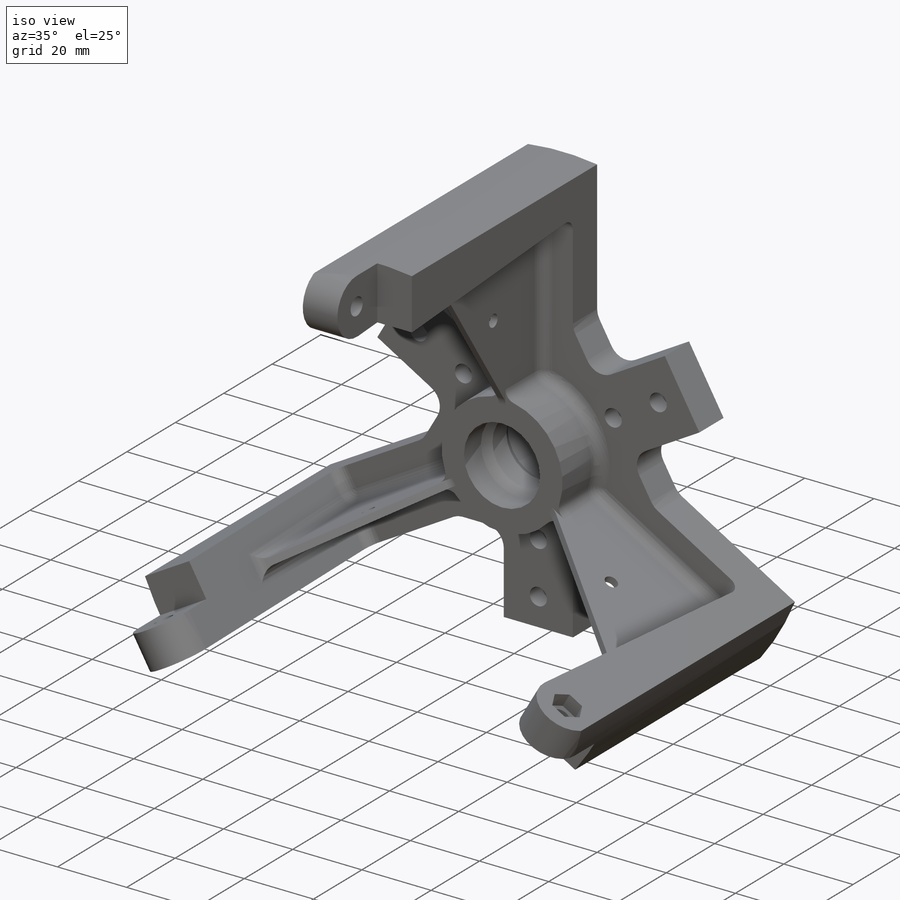
[diagram: iso view]
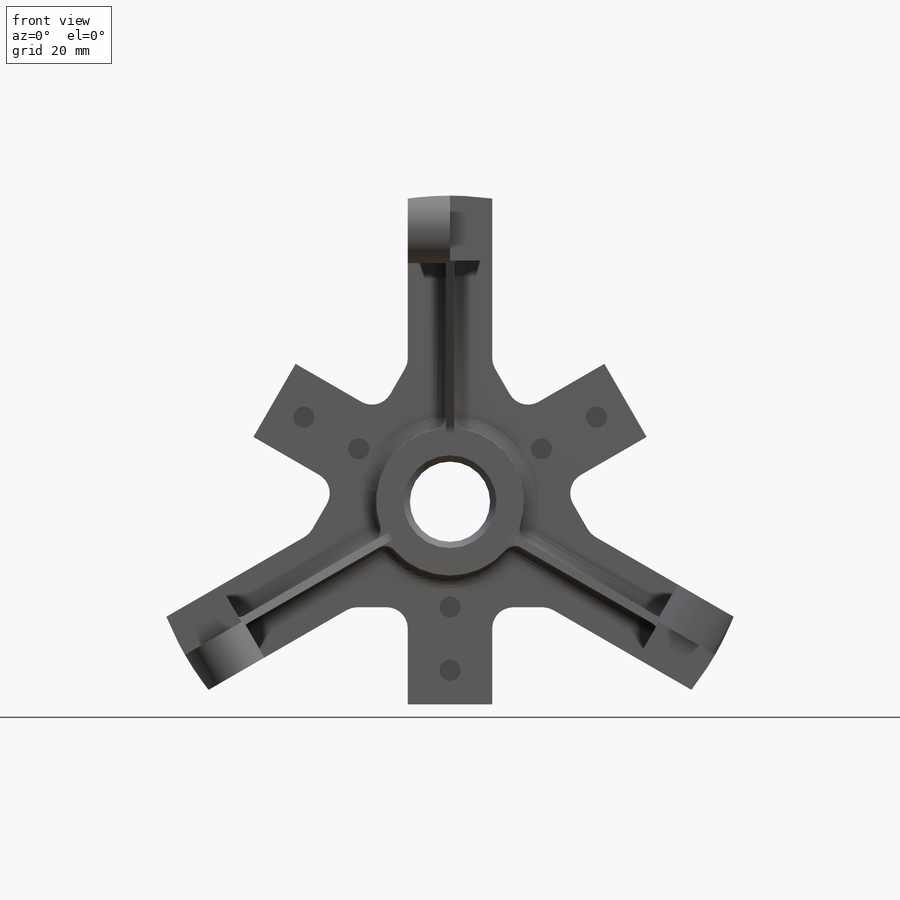
[diagram: front view]
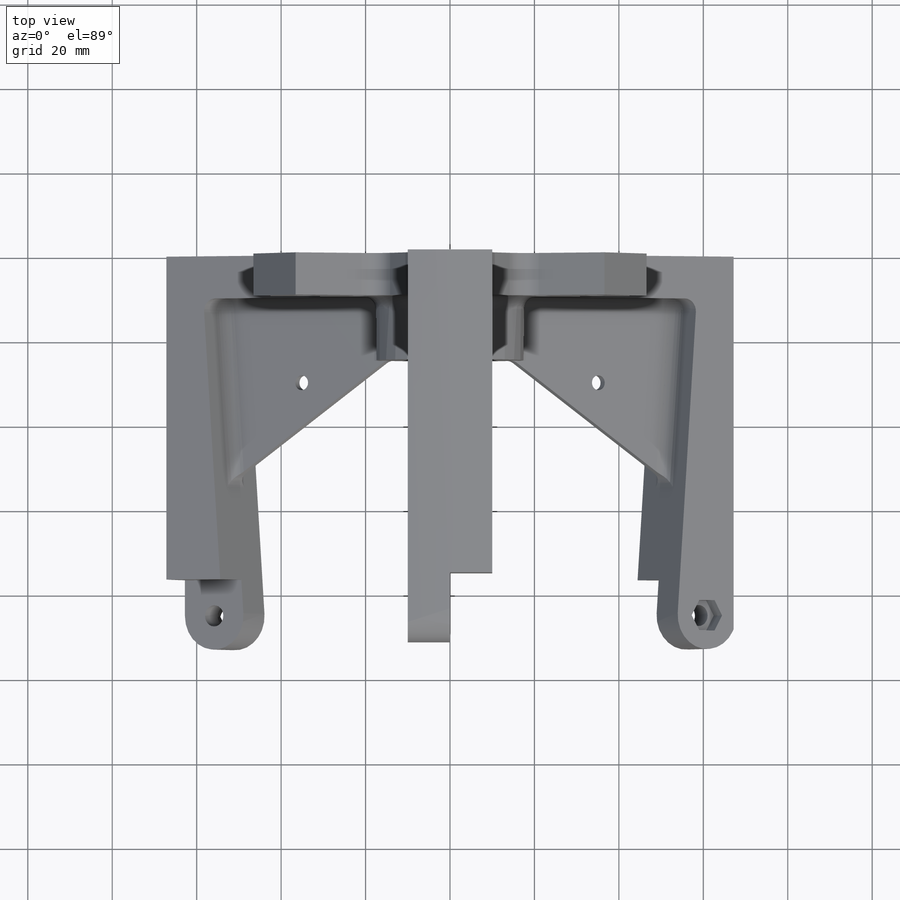
[diagram: top view]
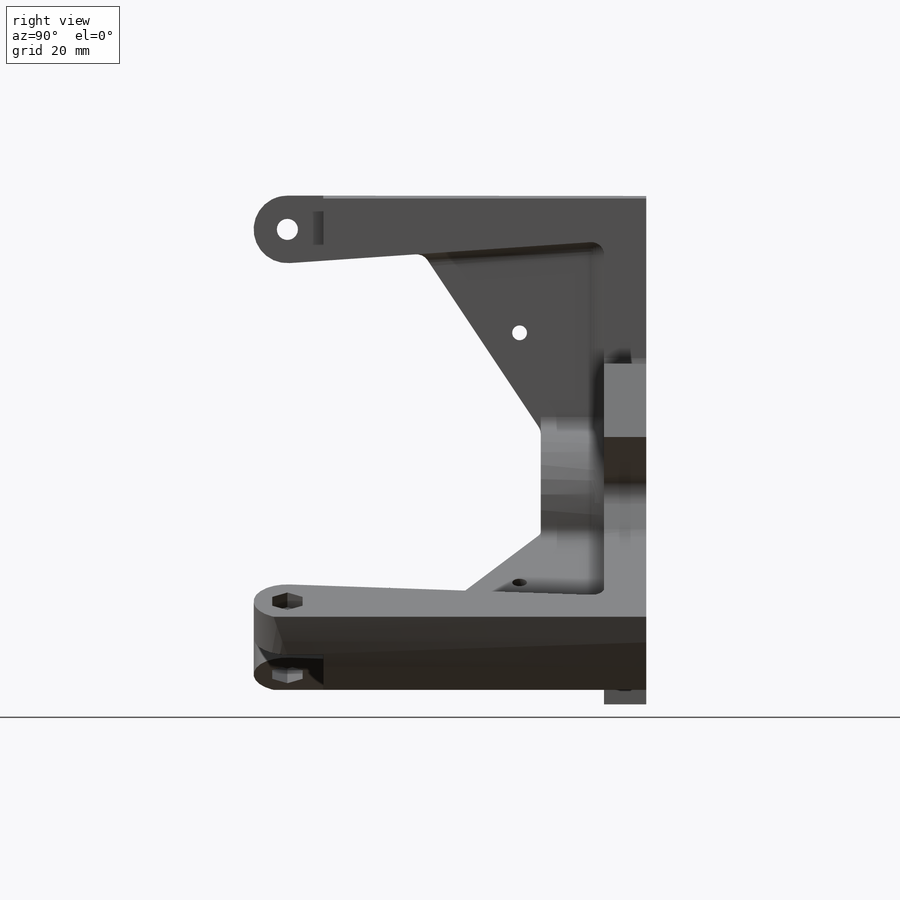
[diagram: right view]
SOLIDWORKS PART (.sldprt)
format: sldprt  version: not decoded by parser v0  size: 596,480 bytes
history: native  units: mm
features: sketch x10, cut_extrude x5, extrude x3, pattern_circular x2, material x1, revolve x1, cut_revolve x1, fillet x1 (+11 scaffold rows collapsed)
feature tree (35):
  scaffold x11  (default folders/planes/origin — collapsed)
  material  "Material <not specified>"
  sketch  "Sketch1"  dims[c1.D1=25.0mm c1.D2=10.0mm c1.D3=22.0mm c1.D4=19.0mm c1.D5=7.0mm c1.D6=~3.286265mm c2.D6=30.0deg c2.D7=35.0mm c2.D8=145.0mm c2.D9=10.0mm c2.D10=85.0mm]
  revolve  "Revolve1"  Angle=360deg
  sketch  "Sketch2"  dims[c1.D4=5.0mm c1.D6=5.0mm c1.D11=5.0mm c1.D1=10.0mm c1.D2=10.0mm c1.D3=25.0mm c1.D5=~5.680313mm c2.D5=30.0deg c2.D6=25.0mm c2.D7=25.0mm c2.D8=15.0mm c2.D9=20.0mm c2.D10=48.0mm]
  cut_extrude  "Cut-Extrude1"  [1 undecoded]
  sketch  "Sketch7"  dims[D1=7.2mm]
  cut_extrude  "Cut-Extrude5"  Depth=4.5mm
  sketch  "Sketch8"
  extrude  "Boss-Extrude2"  Depth=0.4mm
  sketch  "Sketch10"  dims[D4=3.5mm D1=45.0mm D2=45.0mm D3=17.0mm D5=20.0mm D6=40.0mm]
  extrude  "Boss-Extrude3"  Depth=2mm
  pattern_circular  "CirPattern1"  Count=3 Angle=360deg
  sketch  "Sketch3"  dims[D1=8.0mm]
  extrude  "Boss-Extrude1"  Depth=20mm
  sketch  "Sketch4"  dims[D1=5.0mm]
  cut_extrude  "Cut-Extrude2"  [1 undecoded]
  sketch  "Sketch5"  dims[D1=8.5mm]
  cut_extrude  "Cut-Extrude3"  Depth=10mm
  sketch  "Sketch6"  dims[D1=7.2mm]
  cut_extrude  "Cut-Extrude4"  Depth=4mm
  pattern_circular  "CirPattern4"  Count=3 Angle=360deg
  sketch  "Sketch9"  dims[D1=72.5mm]
  cut_revolve  "Cut-Revolve1"  Angle=360deg
  fillet  "Fillet1"  Radius=3mm
decode coverage: 20 of 23 modeling features carry decoded parameters
note: ~ marks probable driven/reference dimensions
note: 2 parameter values undecoded
note: suppression state not decoded; provenance and decode notes live in map.json
